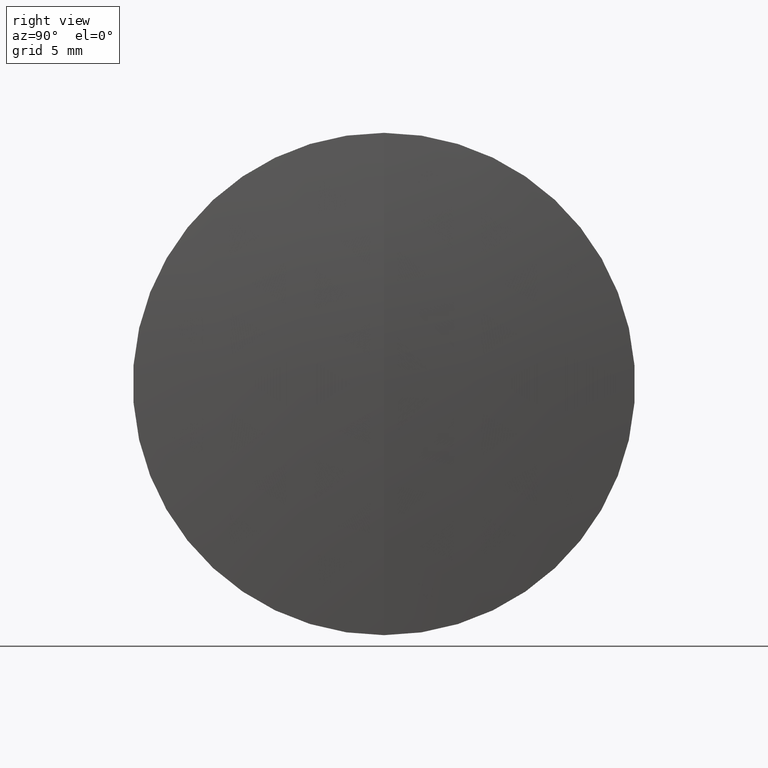
[diagram: clean part render]
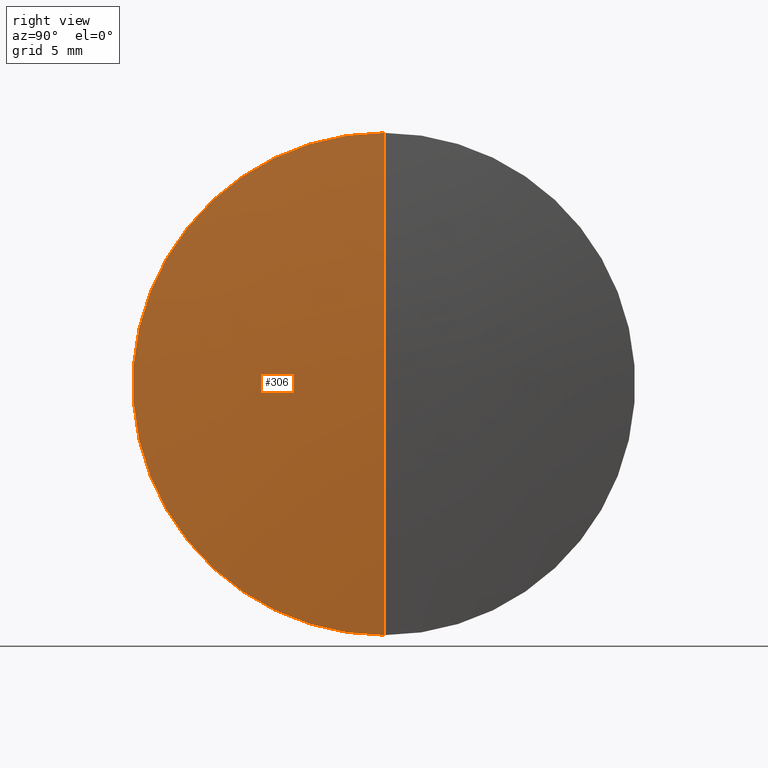
[diagram: same view with one face highlighted and labeled with its STEP entity id]
A machine part, right view. The second image highlights one B-rep face of the part: STEP entity #306.
In plain terms, the highlighted spherical surface has radius 130.6 mm.
Its self-contained STEP definition (entity closure, byte-faithful):
#21 = DIRECTION ( 'NONE',  ( 0.0000000000000000000, -1.224646799147353000E-016, 1.000000000000000000 ) ) ;
#27 = EDGE_CURVE ( 'NONE', #146, #310, #59, .T. ) ;
#29 = CARTESIAN_POINT ( 'NONE',  ( 238.3768828869102400, 0.0000000000000000000, 12.70000000000002100 ) ) ;
#49 = EDGE_CURVE ( 'NONE', #65, #310, #66, .T. ) ;
#51 = CIRCLE ( 'NONE', #217, 130.5999999999999900 ) ;
#59 = CIRCLE ( 'NONE', #255, 12.70000000000002100 ) ;
#65 = VERTEX_POINT ( 'NONE', #283 ) ;
#66 = CIRCLE ( 'NONE', #201, 130.5999999999999900 ) ;
#74 = CARTESIAN_POINT ( 'NONE',  ( 108.3958458084194400, 0.0000000000000000000, 0.0000000000000000000 ) ) ;
#86 = CARTESIAN_POINT ( 'NONE',  ( 108.3958458084194400, 0.0000000000000000000, 0.0000000000000000000 ) ) ;
#93 = EDGE_LOOP ( 'NONE', ( #103, #284, #140 ) ) ;
#103 = ORIENTED_EDGE ( 'NONE', *, *, #299, .F. ) ;
#114 = CARTESIAN_POINT ( 'NONE',  ( 108.3958458084194400, 0.0000000000000000000, 0.0000000000000000000 ) ) ;
#116 = DIRECTION ( 'NONE',  ( 0.0000000000000000000, 0.0000000000000000000, 1.000000000000000000 ) ) ;
#140 = ORIENTED_EDGE ( 'NONE', *, *, #27, .F. ) ;
#146 = VERTEX_POINT ( 'NONE', #181 ) ;
#156 = SPHERICAL_SURFACE ( 'NONE', #171, 130.5999999999999900 ) ;
#169 = CARTESIAN_POINT ( 'NONE',  ( 238.3768828869102400, 0.0000000000000000000, 0.0000000000000000000 ) ) ;
#171 = AXIS2_PLACEMENT_3D ( 'NONE', #86, #277, #116 ) ;
#181 = CARTESIAN_POINT ( 'NONE',  ( 238.3768828869102400, 1.555301434917141200E-015, -12.70000000000002200 ) ) ;
#201 = AXIS2_PLACEMENT_3D ( 'NONE', #74, #202, #266 ) ;
#202 = DIRECTION ( 'NONE',  ( 0.0000000000000000000, -1.000000000000000000, 0.0000000000000000000 ) ) ;
#206 = DIRECTION ( 'NONE',  ( 0.0000000000000000000, 0.0000000000000000000, 1.000000000000000000 ) ) ;
#217 = AXIS2_PLACEMENT_3D ( 'NONE', #114, #271, #21 ) ;
#236 = FACE_OUTER_BOUND ( 'NONE', #93, .T. ) ;
#255 = AXIS2_PLACEMENT_3D ( 'NONE', #169, #343, #206 ) ;
#266 = DIRECTION ( 'NONE',  ( 0.0000000000000000000, 0.0000000000000000000, -1.000000000000000000 ) ) ;
#271 = DIRECTION ( 'NONE',  ( -0.0000000000000000000, 1.000000000000000000, 1.224646799147353200E-016 ) ) ;
#277 = DIRECTION ( 'NONE',  ( 0.0000000000000000000, 1.000000000000000000, 0.0000000000000000000 ) ) ;
#283 = CARTESIAN_POINT ( 'NONE',  ( 238.9958458084194300, 0.0000000000000000000, 7.996943598432215000E-015 ) ) ;
#284 = ORIENTED_EDGE ( 'NONE', *, *, #49, .T. ) ;
#299 = EDGE_CURVE ( 'NONE', #65, #146, #51, .T. ) ;
#306 = ADVANCED_FACE ( 'NONE', ( #236 ), #156, .T. ) ;
#310 = VERTEX_POINT ( 'NONE', #29 ) ;
#343 = DIRECTION ( 'NONE',  ( -1.000000000000000000, -0.0000000000000000000, -0.0000000000000000000 ) ) ;